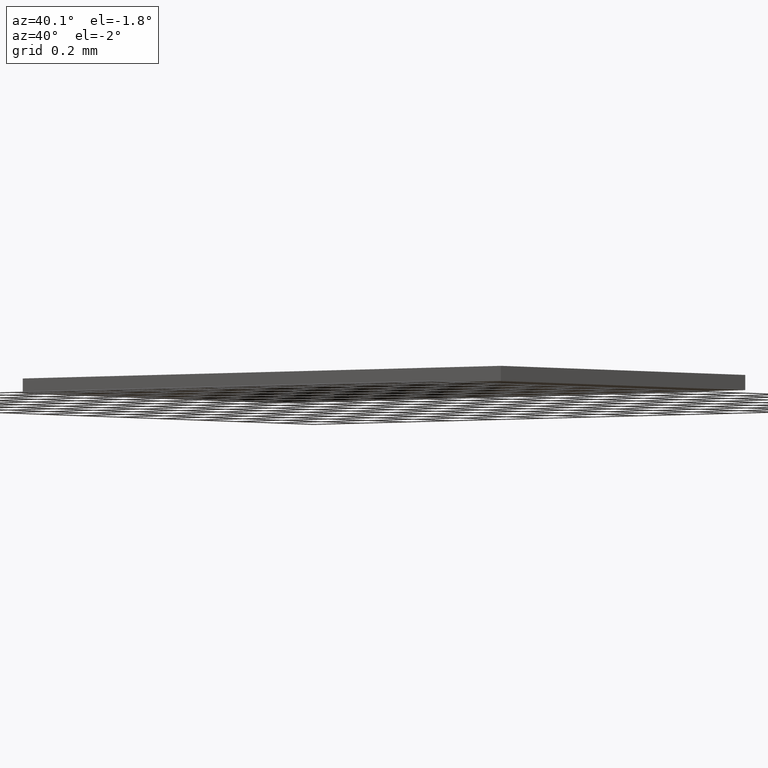
[diagram: clean part render]
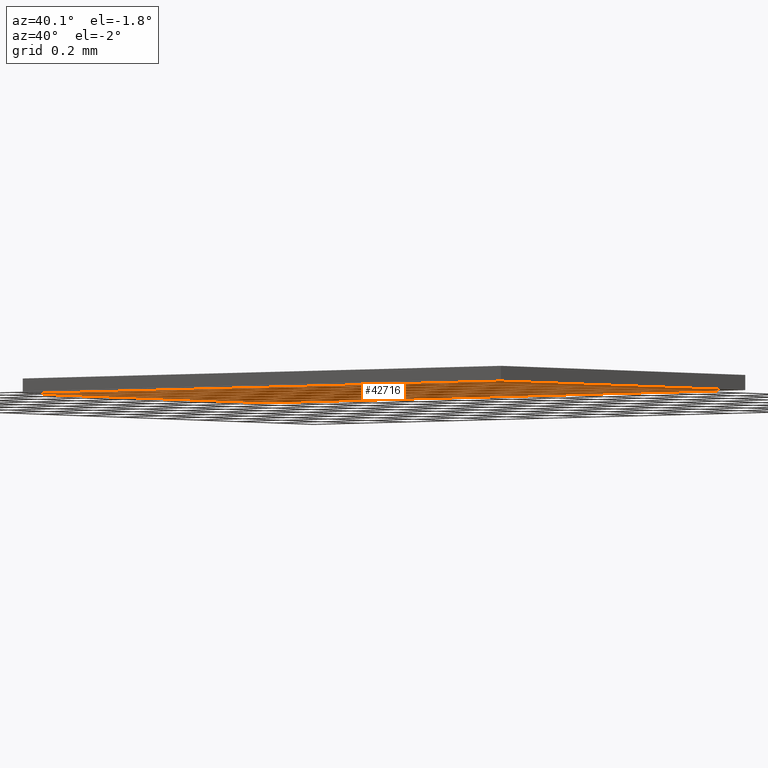
[diagram: same view with one face highlighted and labeled with its STEP entity id]
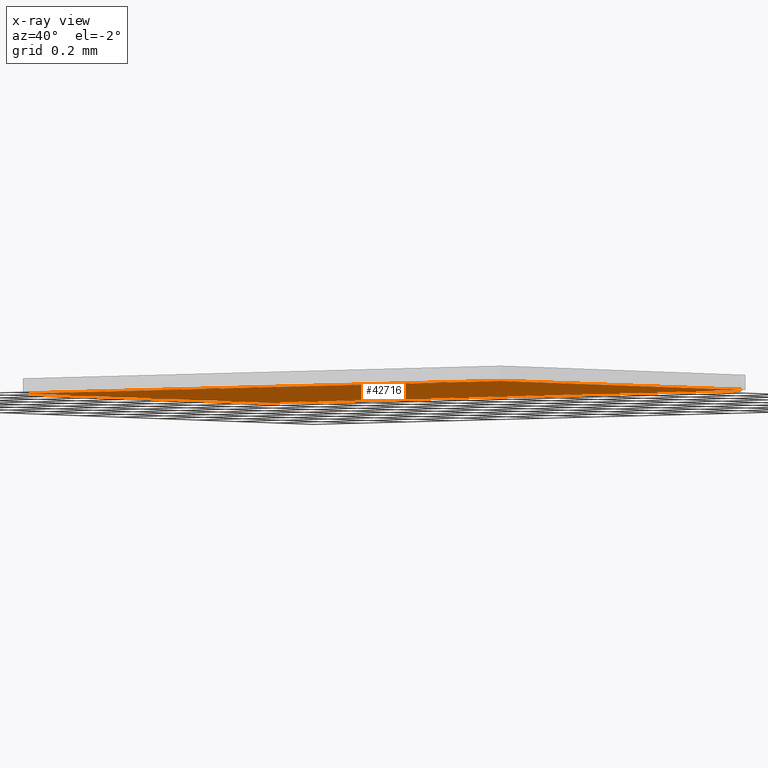
[diagram: x-ray of the same camera — body ghosted, the highlighted face saturated]
A machine part, auxiliary view. The second image highlights one B-rep face of the part: STEP entity #42716.
The next image is the same camera in x-ray: the body ghosted, the highlighted face saturated — about 0% of this face is hidden behind the body in this view.
In plain terms, the highlighted planar face has unit normal (0, 0, 1).
Its self-contained STEP definition (entity closure, byte-faithful):
#40550=CARTESIAN_POINT('',(0.0,0.0,0.0));
#40551=VERTEX_POINT('',#40550);
#40558=CARTESIAN_POINT('',(0.081102362204724,0.0,0.0));
#40559=VERTEX_POINT('',#40558);
#40560=CARTESIAN_POINT('',(0.0,0.0,0.0));
#40561=DIRECTION('',(1.0,0.0,0.0));
#40562=VECTOR('',#40561,0.081102362204724);
#40563=LINE('',#40560,#40562);
#40564=EDGE_CURVE('',#40551,#40559,#40563,.T.);
#40581=CARTESIAN_POINT('',(-1.506701E-017,0.049212598425197,0.0));
#40582=VERTEX_POINT('',#40581);
#40589=CARTESIAN_POINT('',(-1.506701E-017,0.049212598425197,0.0));
#40590=DIRECTION('',(0.0,-1.0,0.0));
#40591=VECTOR('',#40590,0.049212598425197);
#40592=LINE('',#40589,#40591);
#40593=EDGE_CURVE('',#40582,#40551,#40592,.T.);
#42670=CARTESIAN_POINT('',(0.081102362204724,0.049212598425197,0.0));
#42671=VERTEX_POINT('',#42670);
#42678=CARTESIAN_POINT('',(0.081102362204724,0.049212598425197,0.0));
#42679=DIRECTION('',(-1.0,0.0,0.0));
#42680=VECTOR('',#42679,0.081102362204724);
#42681=LINE('',#42678,#42680);
#42682=EDGE_CURVE('',#42671,#40582,#42681,.T.);
#42695=CARTESIAN_POINT('',(0.081102362204724,0.0,0.0));
#42696=DIRECTION('',(0.0,1.0,0.0));
#42697=VECTOR('',#42696,0.049212598425197);
#42698=LINE('',#42695,#42697);
#42699=EDGE_CURVE('',#40559,#42671,#42698,.T.);
#42705=CARTESIAN_POINT('',(0.040551181102362,0.024606299212598,0.0));
#42706=DIRECTION('',(0.0,0.0,1.0));
#42707=DIRECTION('',(1.0,0.0,0.0));
#42708=AXIS2_PLACEMENT_3D('',#42705,#42706,#42707);
#42709=PLANE('',#42708);
#42710=ORIENTED_EDGE('',*,*,#40564,.F.);
#42711=ORIENTED_EDGE('',*,*,#40593,.F.);
#42712=ORIENTED_EDGE('',*,*,#42682,.F.);
#42713=ORIENTED_EDGE('',*,*,#42699,.F.);
#42714=EDGE_LOOP('',(#42710,#42711,#42712,#42713));
#42715=FACE_OUTER_BOUND('',#42714,.T.);
#42716=ADVANCED_FACE('',(#42715),#42709,.F.);